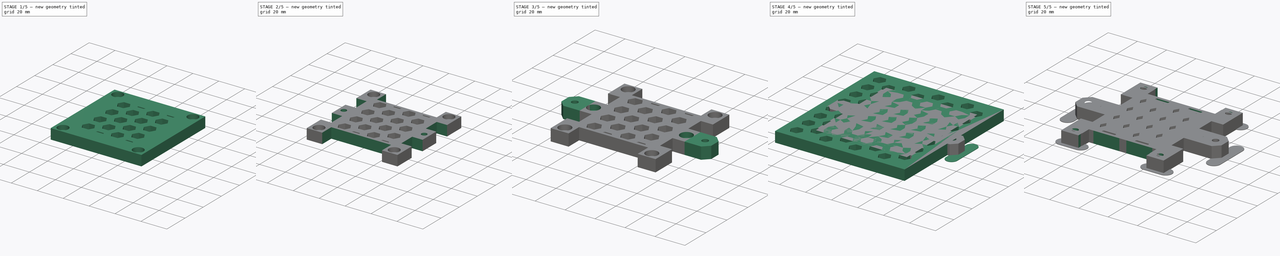
[diagram: build sequence overview — one tinted view per stage of 5, left to right]
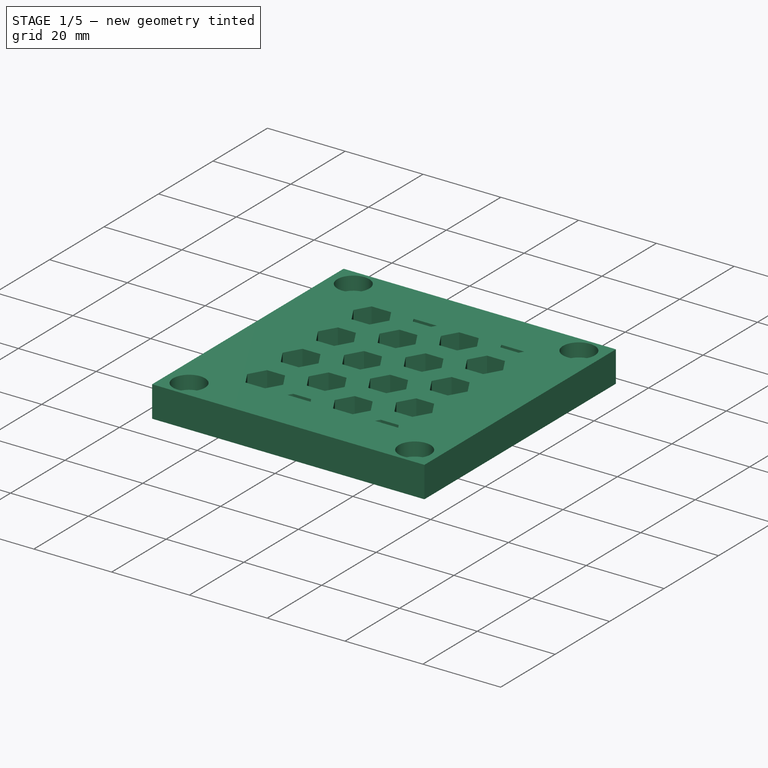
[diagram: stage 1 of 5 — iso view after this stage's code; geometry added in this stage tinted green]
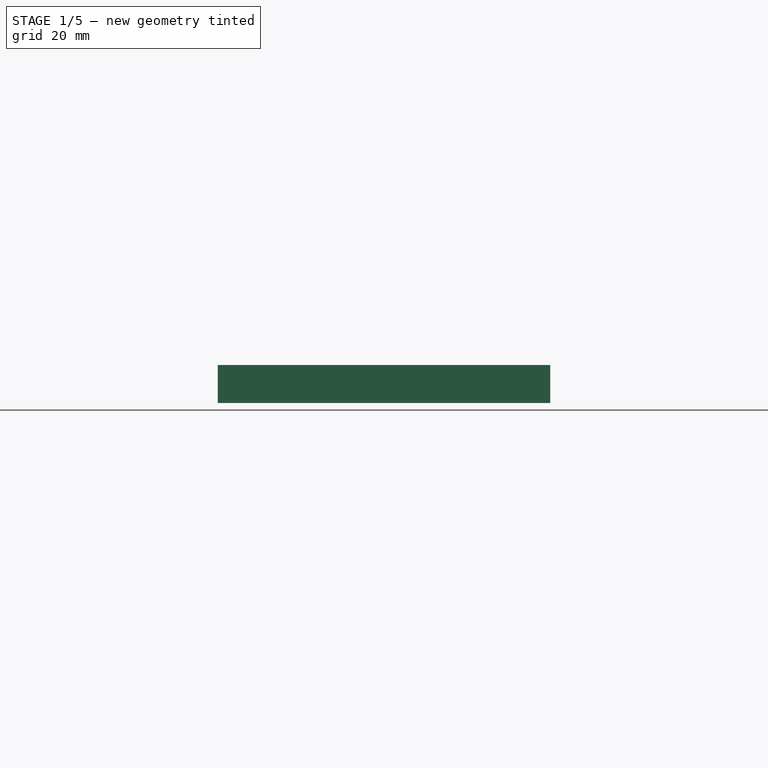
[diagram: stage 1 of 5 — front view after this stage's code; geometry added in this stage tinted green]
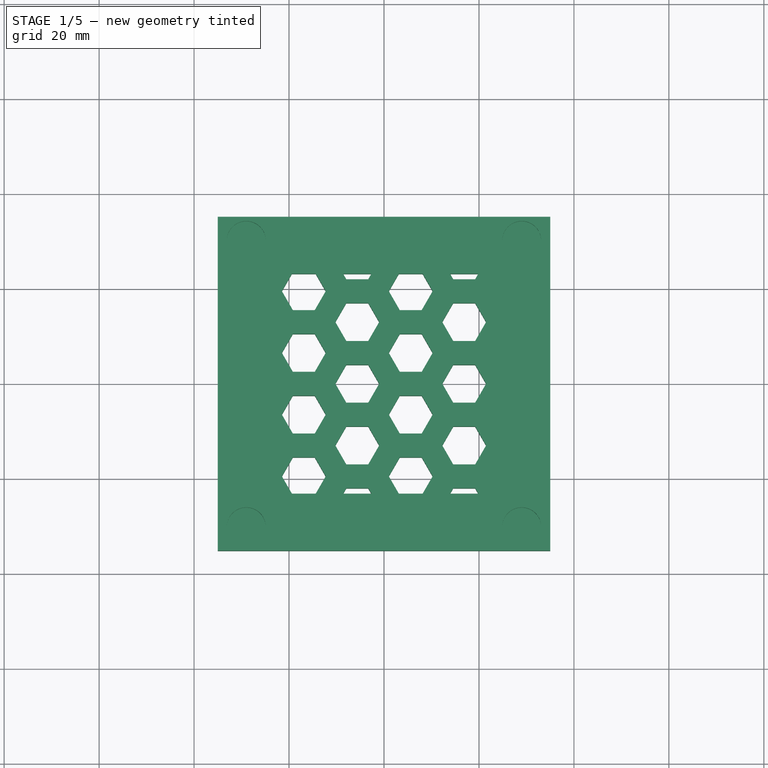
[diagram: stage 1 of 5 — top view after this stage's code; geometry added in this stage tinted green]
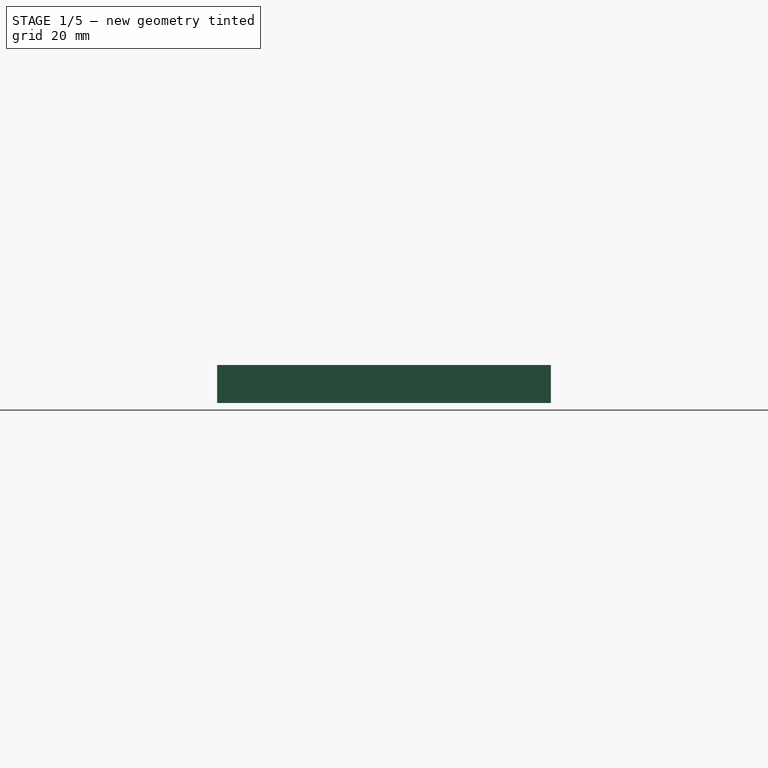
[diagram: stage 1 of 5 — right view after this stage's code; geometry added in this stage tinted green]
FCSTD DOCUMENT  (FreeCAD 0.15R4671 (Git))
Label: Halter Fraesspindel Rueckwand
License: All rights reserved
LicenseURL: http://de.wikipedia.org/wiki/Alle_Rechte_vorbehalten
objects: Sketcher::SketchObject×18, PartDesign::Pocket×11, Drawing::FeatureView×10, PartDesign::Pad×7, Part::Feature×2, Part::Extrusion×2, Part::MultiCommon×2, Part::MultiFuse×1, Drawing::FeatureViewPart×1, Drawing::FeaturePage×1
note: 61 computed .brp shape members not serialized (recipe doc carries the construction recipe); baked Part::Feature solids carry a one-line shape summary decoded from their .brp

FEATURE [Sketcher::SketchObject] Sketch005
  sketch-geometry (8):
    g0: LineSegment StartX=-35 StartY=35.15 StartZ=0 EndX=35 EndY=35.15 EndZ=0
    g1: LineSegment StartX=35 StartY=35.15 StartZ=0 EndX=35 EndY=-35.15 EndZ=0
    g2: LineSegment StartX=35 StartY=-35.15 StartZ=0 EndX=-35 EndY=-35.15 EndZ=0
    g3: LineSegment StartX=-35 StartY=-35.15 StartZ=0 EndX=-35 EndY=35.15 EndZ=0
    g4: LineSegment StartX=-23 StartY=23.15 StartZ=0 EndX=23 EndY=23.15 EndZ=0
    g5: LineSegment StartX=23 StartY=23.15 StartZ=0 EndX=23 EndY=-23.15 EndZ=0
    g6: LineSegment StartX=23 StartY=-23.15 StartZ=0 EndX=-23 EndY=-23.15 EndZ=0
    g7: LineSegment StartX=-23 StartY=-23.15 StartZ=0 EndX=-23 EndY=23.15 EndZ=0
  constraints (24):
    c: Coincident(g0,g1)
    c: Coincident(g1,g2)
    c: Coincident(g2,g3)
    c: Coincident(g3,g0)
    c: Horizontal(g0)
    c: Horizontal(g2)
    c: Vertical(g1)
    c: Vertical(g3)
    c: Symmetric(g1,g2,g-2)
    c: Symmetric(g0,g1,g-1)
    c: DistanceX(g2) = -70
    c: DistanceY(g1) = -70.3
    c: Coincident(g4,g5)
    c: Coincident(g5,g6)
    c: Coincident(g6,g7)
    c: Coincident(g7,g4)
    c: Horizontal(g4)
    c: Horizontal(g6)
    c: Vertical(g5)
    c: Vertical(g7)
    c: Symmetric(g5,g6,g-2)
    c: Symmetric(g4,g5,g-1)
    c: DistanceX(g5,g1) = 12
    c: DistanceY(g1,g5) = 12
FEATURE [PartDesign::Pad] Pad002
  Length = 8
  Length2 = 100
  Sketch = -> Sketch005
  Type = 0
FEATURE [Sketcher::SketchObject] Sketch006
  ExternalGeometry = -> [Pad002]
  Placement = pos=(0,0,8) rot=(0,0,1;0rad)
  Support = -> Pad002 [Face10]
  sketch-geometry (8):
    g0: LineSegment [constr] StartX=-29 StartY=30.15 StartZ=0 EndX=29 EndY=30.15 EndZ=0
    g1: LineSegment [constr] StartX=29 StartY=30.15 StartZ=0 EndX=29 EndY=-30.15 EndZ=0
    g2: LineSegment [constr] StartX=29 StartY=-30.15 StartZ=0 EndX=-29 EndY=-30.15 EndZ=0
    g3: LineSegment [constr] StartX=-29 StartY=-30.15 StartZ=0 EndX=-29 EndY=30.15 EndZ=0
    g4: Circle CenterX=-29 CenterY=30.15 CenterZ=0 NormalX=0 NormalY=0 NormalZ=1 Radius=4.1
    g5: Circle CenterX=29 CenterY=30.15 CenterZ=0 NormalX=0 NormalY=0 NormalZ=1 Radius=4.1
    g6: Circle CenterX=-29 CenterY=-30.15 CenterZ=0 NormalX=0 NormalY=0 NormalZ=1 Radius=4.1
    g7: Circle CenterX=29 CenterY=-30.15 CenterZ=0 NormalX=0 NormalY=0 NormalZ=1 Radius=4.1
  constraints (20):
    c: Coincident(g0,g1)
    c: Coincident(g1,g2)
    c: Coincident(g2,g3)
    c: Coincident(g3,g0)
    c: Horizontal(g0)
    c: Horizontal(g2)
    c: Vertical(g1)
    c: Vertical(g3)
    c: DistanceX(g0,g-3) = -6
    c: DistanceY(g-3,g0) = -5
    c: Equal(g4,g6)
    c: Equal(g6,g7)
    c: Equal(g7,g5)
    c: Radius(g4) = 4.1
    c: Coincident(g4,g0)
    c: Coincident(g0,g5)
    c: Coincident(g7,g1)
    c: Coincident(g6,g2)
    c: Symmetric(g1,g2,g-2)
    c: Symmetric(g0,g1,g-1)
FEATURE [PartDesign::Pocket] Pocket003
  Length = 3.5
  Sketch = -> Sketch006
  Type = 0
FEATURE [Sketcher::SketchObject] Sketch016
  sketch-geometry (4):
    g0: LineSegment StartX=-23 StartY=23.15 StartZ=0 EndX=23 EndY=23.15 EndZ=0
    g1: LineSegment StartX=23 StartY=23.15 StartZ=0 EndX=23 EndY=-23.15 EndZ=0
    g2: LineSegment StartX=23 StartY=-23.15 StartZ=0 EndX=-23 EndY=-23.15 EndZ=0
    g3: LineSegment StartX=-23 StartY=-23.15 StartZ=0 EndX=-23 EndY=23.15 EndZ=0
  constraints (12):
    c: Coincident(g0,g1)
    c: Coincident(g1,g2)
    c: Coincident(g2,g3)
    c: Coincident(g3,g0)
    c: Horizontal(g0)
    c: Horizontal(g2)
    c: Vertical(g1)
    c: Vertical(g3)
    c: Symmetric(g1,g2,g-2)
    c: Symmetric(g0,g1,g-1)
    c: DistanceX(g0) = 46
    c: DistanceY(g1) = -46.3
FEATURE [PartDesign::Pad] Pad005
  Length = 8
  Length2 = 100
  Sketch = -> Sketch016
  Type = 0
FEATURE [Part::Feature] Honeycomb001
  shape: bbox 99.59 x 109 x 2e-07 mm, 1 faces, 0 solids (baked)
FEATURE [Part::Extrusion] Extrude001
  Base = -> Honeycomb001
  Dir = (0,0,8)
  Solid = true
FEATURE [Part::MultiCommon] Common001
  Shapes = -> [Extrude001,Pad005]
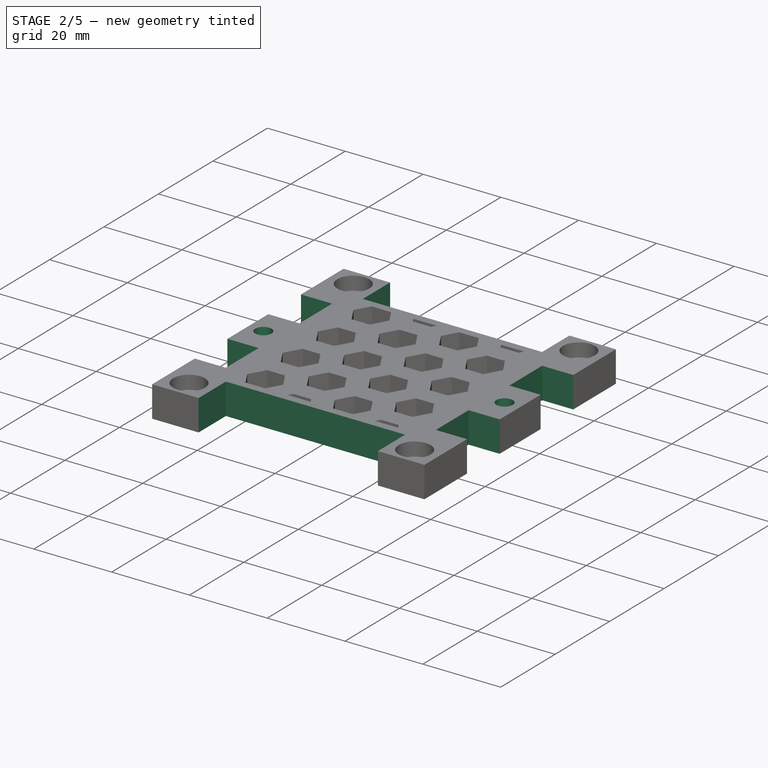
[diagram: stage 2 of 5 — iso view after this stage's code; geometry added in this stage tinted green]
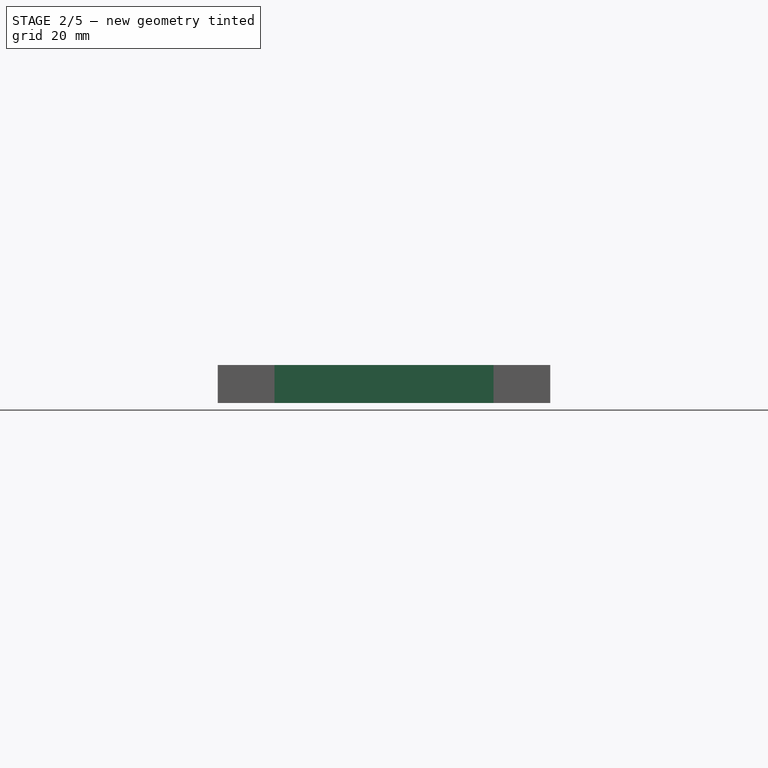
[diagram: stage 2 of 5 — front view after this stage's code; geometry added in this stage tinted green]
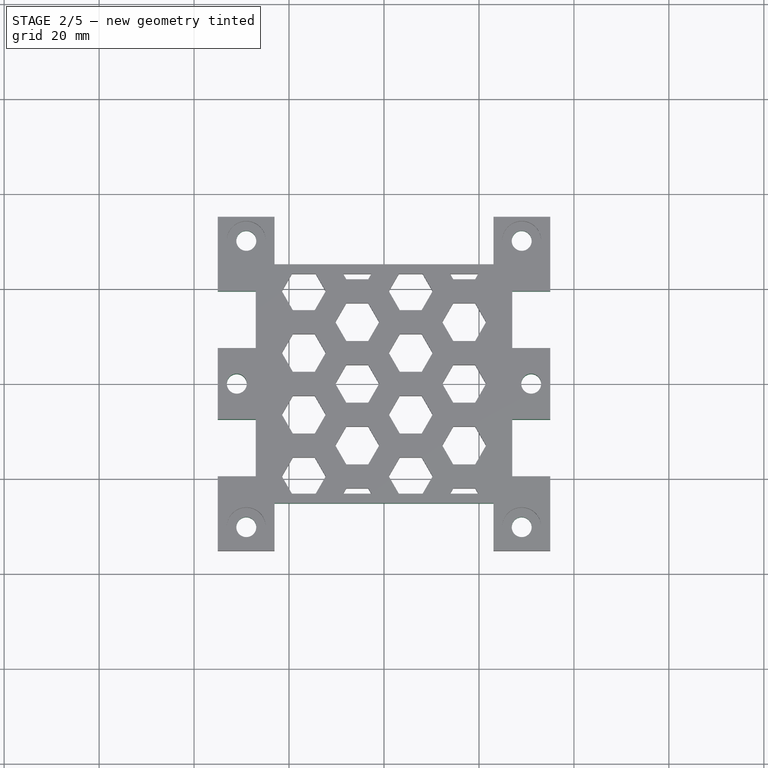
[diagram: stage 2 of 5 — top view after this stage's code; geometry added in this stage tinted green]
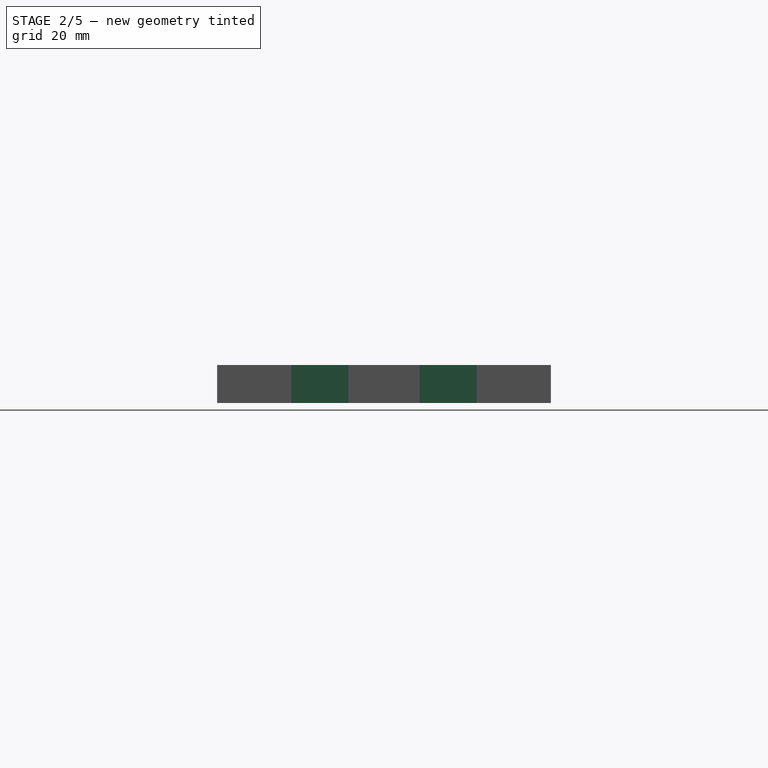
[diagram: stage 2 of 5 — right view after this stage's code; geometry added in this stage tinted green]
FEATURE [Sketcher::SketchObject] Sketch007
  ExternalGeometry = -> [Pocket003]
  Placement = pos=(0,0,4.5) rot=(0,0,1;0rad)
  Support = -> Pocket003 [Face18]
  sketch-geometry (8):
    g0: LineSegment [constr] StartX=-29 StartY=30.15 StartZ=0 EndX=29 EndY=30.15 EndZ=0
    g1: LineSegment [constr] StartX=29 StartY=30.15 StartZ=0 EndX=29 EndY=-30.15 EndZ=0
    g2: LineSegment [constr] StartX=29 StartY=-30.15 StartZ=0 EndX=-29 EndY=-30.15 EndZ=0
    g3: LineSegment [constr] StartX=-29 StartY=-30.15 StartZ=0 EndX=-29 EndY=30.15 EndZ=0
    g4: Circle CenterX=-29 CenterY=30.15 CenterZ=0 NormalX=0 NormalY=0 NormalZ=1 Radius=2.1
    g5: Circle CenterX=-29 CenterY=-30.15 CenterZ=0 NormalX=0 NormalY=0 NormalZ=1 Radius=2.1
    g6: Circle CenterX=29 CenterY=30.15 CenterZ=0 NormalX=0 NormalY=0 NormalZ=1 Radius=2.1
    g7: Circle CenterX=29 CenterY=-30.15 CenterZ=0 NormalX=0 NormalY=0 NormalZ=1 Radius=2.1
  constraints (19):
    c: Coincident(g0,g1)
    c: Coincident(g1,g2)
    c: Coincident(g2,g3)
    c: Coincident(g3,g0)
    c: Horizontal(g0)
    c: Horizontal(g2)
    c: Vertical(g1)
    c: Vertical(g3)
    c: Coincident(g0,g-3)
    c: Symmetric(g1,g2,g-2)
    c: Symmetric(g0,g1,g-1)
    c: Coincident(g4,g0)
    c: Coincident(g5,g2)
    c: Coincident(g6,g0)
    c: Coincident(g7,g1)
    c: Equal(g4,g5)
    c: Equal(g5,g7)
    c: Equal(g7,g6)
    c: Radius(g7) = 2.1
FEATURE [PartDesign::Pocket] Pocket004
  Length = 5
  Sketch = -> Sketch007
  Type = 1
FEATURE [Sketcher::SketchObject] Sketch008
  ExternalGeometry = -> [Pocket004]
  Placement = pos=(0,0,8) rot=(0,0,1;0rad)
  Support = -> Pocket004 [Face5]
  sketch-geometry (16):
    g0: LineSegment StartX=-35 StartY=19.5 StartZ=0 EndX=-27 EndY=19.5 EndZ=0
    g1: LineSegment StartX=-27 StartY=19.5 StartZ=0 EndX=-27 EndY=7.5 EndZ=0
    g2: LineSegment StartX=-27 StartY=7.5 StartZ=0 EndX=-35 EndY=7.5 EndZ=0
    g3: LineSegment StartX=-35 StartY=7.5 StartZ=0 EndX=-35 EndY=19.5 EndZ=0
    g4: LineSegment StartX=-35 StartY=-19.5 StartZ=0 EndX=-27 EndY=-19.5 EndZ=0
    g5: LineSegment StartX=-27 StartY=-19.5 StartZ=0 EndX=-27 EndY=-7.5 EndZ=0
    g6: LineSegment StartX=-27 StartY=-7.5 StartZ=0 EndX=-35 EndY=-7.5 EndZ=0
    g7: LineSegment StartX=-35 StartY=-7.5 StartZ=0 EndX=-35 EndY=-19.5 EndZ=0
    g8: LineSegment StartX=35 StartY=-19.5 StartZ=0 EndX=27 EndY=-19.5 EndZ=0
    g9: LineSegment StartX=27 StartY=-19.5 StartZ=0 EndX=27 EndY=-7.5 EndZ=0
    g10: LineSegment StartX=27 StartY=-7.5 StartZ=0 EndX=35 EndY=-7.5 EndZ=0
    g11: LineSegment StartX=35 StartY=-7.5 StartZ=0 EndX=35 EndY=-19.5 EndZ=0
    g12: LineSegment StartX=35 StartY=7.5 StartZ=0 EndX=27 EndY=7.5 EndZ=0
    g13: LineSegment StartX=27 StartY=7.5 StartZ=0 EndX=27 EndY=19.5 EndZ=0
    g14: LineSegment StartX=27 StartY=19.5 StartZ=0 EndX=35 EndY=19.5 EndZ=0
    g15: LineSegment StartX=35 StartY=19.5 StartZ=0 EndX=35 EndY=7.5 EndZ=0
  constraints (48):
    c: Coincident(g0,g1)
    c: Coincident(g1,g2)
    c: Coincident(g2,g3)
    c: Coincident(g3,g0)
    c: Horizontal(g0)
    c: Horizontal(g2)
    c: Vertical(g1)
    c: Vertical(g3)
    c: PointOnObject(g0,g-3)
    c: Coincident(g4,g5)
    c: Coincident(g5,g6)
    c: Coincident(g6,g7)
    c: Coincident(g7,g4)
    c: Horizontal(g4)
    c: Horizontal(g6)
    c: Vertical(g5)
    c: Vertical(g7)
    c: PointOnObject(g4,g-3)
    c: Coincident(g8,g9)
    c: Coincident(g9,g10)
    c: Coincident(g10,g11)
    c: Coincident(g11,g8)
    c: Horizontal(g8)
    c: Horizontal(g10)
    c: Vertical(g9)
    c: Vertical(g11)
    c: PointOnObject(g8,g-4)
    c: Coincident(g12,g13)
    c: Coincident(g13,g14)
    c: Coincident(g14,g15)
    c: Coincident(g15,g12)
    c: Horizontal(g12)
    c: Horizontal(g14)
    c: Vertical(g13)
    c: Vertical(g15)
    c: PointOnObject(g12,g-4)
    c: PointOnObject(g12,g2)
    c: PointOnObject(g9,g6)
    c: Symmetric(g1,g5,g-1)
    c: DistanceY(g-1,g1) = 7.5
    c: DistanceY(g1) = -12
    c: DistanceX(g0) = 8
    c: Equal(g6,g2)
    c: Equal(g2,g12)
    c: Equal(g12,g10)
    c: Equal(g1,g5)
    c: Equal(g5,g9)
    c: Equal(g9,g13)
FEATURE [PartDesign::Pocket] Pocket005
  Length = 5
  Sketch = -> Sketch008
  Type = 1
FEATURE [Sketcher::SketchObject] Sketch009
  ExternalGeometry = -> [Pocket005]
  Placement = pos=(0,0,8) rot=(0,0,1;0rad)
  Support = -> Pocket005 [Face5]
  sketch-geometry (8):
    g0: LineSegment StartX=-23.05 StartY=35.15 StartZ=0 EndX=23.05 EndY=35.15 EndZ=0
    g1: LineSegment StartX=23.05 StartY=35.15 StartZ=0 EndX=23.05 EndY=25.15 EndZ=0
    g2: LineSegment StartX=23.05 StartY=25.15 StartZ=0 EndX=-23.05 EndY=25.15 EndZ=0
    g3: LineSegment StartX=-23.05 StartY=25.15 StartZ=0 EndX=-23.05 EndY=35.15 EndZ=0
    g4: LineSegment StartX=-23.05 StartY=-35.15 StartZ=0 EndX=23.05 EndY=-35.15 EndZ=0
    g5: LineSegment StartX=23.05 StartY=-35.15 StartZ=0 EndX=23.05 EndY=-25.15 EndZ=0
    g6: LineSegment StartX=23.05 StartY=-25.15 StartZ=0 EndX=-23.05 EndY=-25.15 EndZ=0
    g7: LineSegment StartX=-23.05 StartY=-25.15 StartZ=0 EndX=-23.05 EndY=-35.15 EndZ=0
  constraints (24):
    c: Coincident(g0,g1)
    c: Coincident(g1,g2)
    c: Coincident(g2,g3)
    c: Coincident(g3,g0)
    c: Horizontal(g0)
    c: Horizontal(g2)
    c: Vertical(g1)
    c: Vertical(g3)
    c: PointOnObject(g0,g-3)
    c: DistanceX(g2) = -46.1
    c: Coincident(g4,g5)
    c: Coincident(g5,g6)
    c: Coincident(g6,g7)
    c: Coincident(g7,g4)
    c: Horizontal(g4)
    c: Horizontal(g6)
    c: Vertical(g5)
    c: Vertical(g7)
    c: PointOnObject(g4,g-4)
    c: Equal(g6,g2)
    c: Symmetric(g6,g5,g-2)
    c: PointOnObject(g2,g7)
    c: Equal(g1,g5)
    c: DistanceY(g1) = -10
FEATURE [PartDesign::Pocket] Pocket006
  Length = 5
  Sketch = -> Sketch009
  Type = 1
FEATURE [Sketcher::SketchObject] Sketch010
  ExternalGeometry = -> [Pocket006]
  Placement = pos=(0,0,8) rot=(0,0,1;0rad)
  Support = -> Pocket006 [Face4]
  sketch-geometry (3):
    g0: LineSegment [constr] StartX=27 StartY=7.5 StartZ=0 EndX=35 EndY=-7.5 EndZ=0
    g1: Circle CenterX=31 CenterY=0 CenterZ=0 NormalX=0 NormalY=0 NormalZ=1 Radius=2.1
    g2: Circle CenterX=-31 CenterY=0 CenterZ=0 NormalX=0 NormalY=0 NormalZ=1 Radius=2.1
  constraints (7):
    c: Coincident(g0,g-3)
    c: Coincident(g0,g-4)
    c: PointOnObject(g1,g0)
    c: Symmetric(g2,g1,g-2)
    c: Equal(g2,g1)
    c: Radius(g1) = 2.1
    c: PointOnObject(g1,g-1)
FEATURE [PartDesign::Pocket] Pocket007
  Length = 5
  Sketch = -> Sketch010
  Type = 1
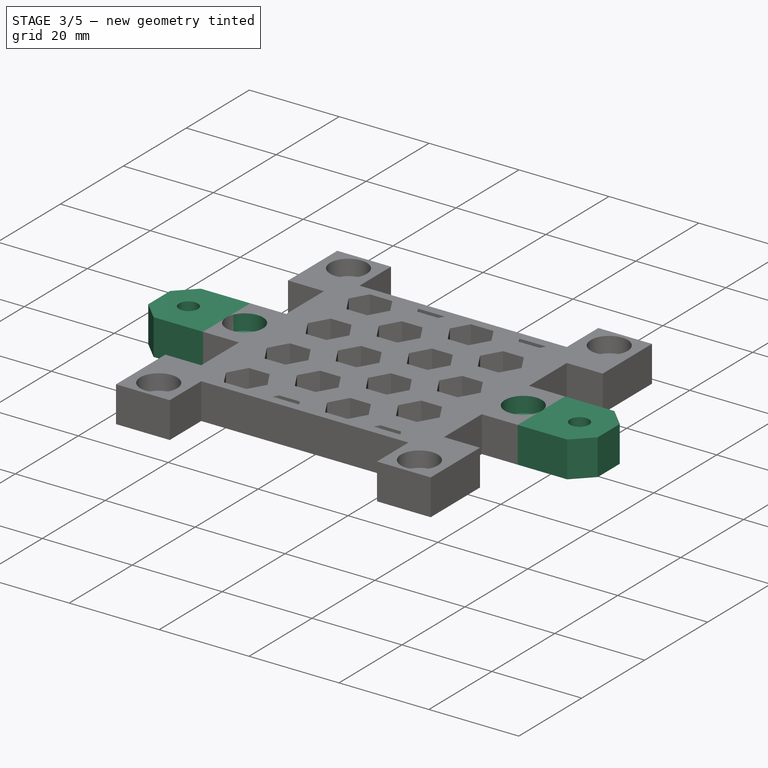
[diagram: stage 3 of 5 — iso view after this stage's code; geometry added in this stage tinted green]
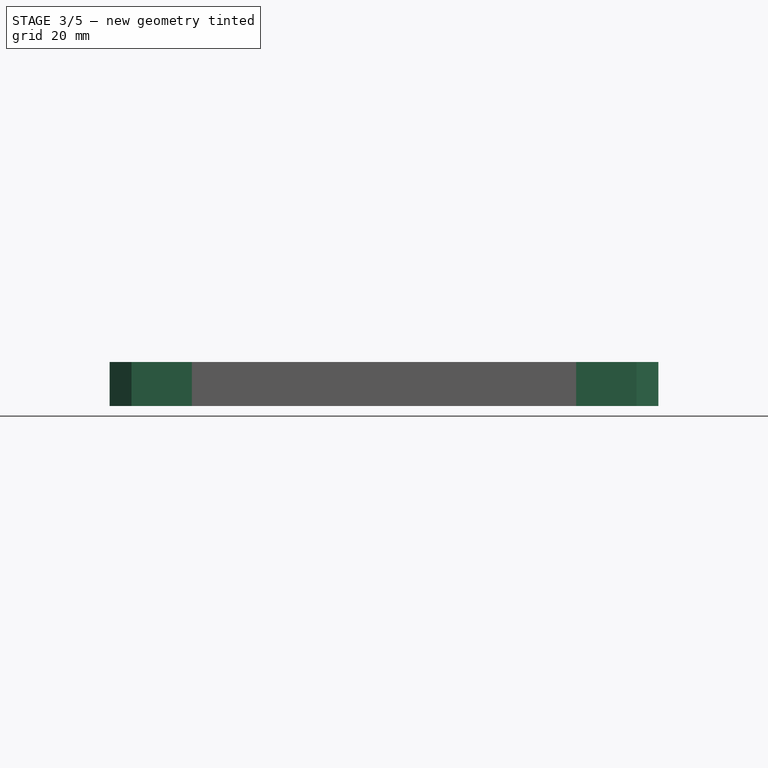
[diagram: stage 3 of 5 — front view after this stage's code; geometry added in this stage tinted green]
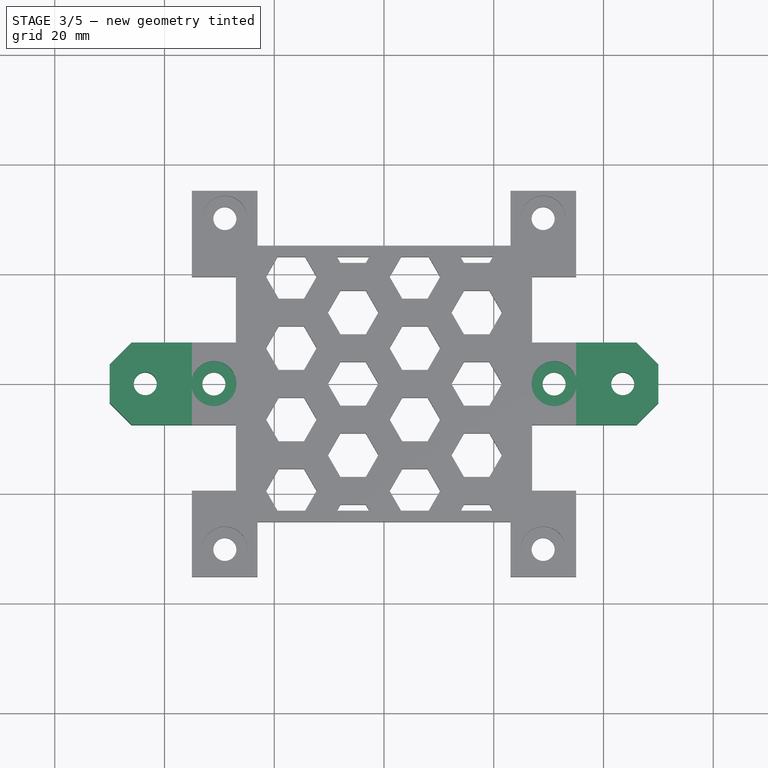
[diagram: stage 3 of 5 — top view after this stage's code; geometry added in this stage tinted green]
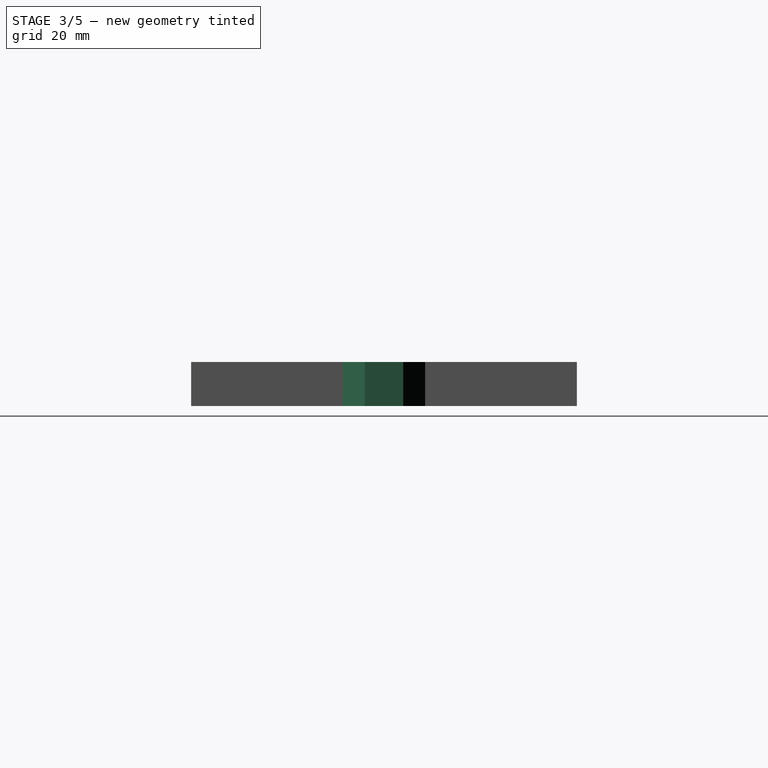
[diagram: stage 3 of 5 — right view after this stage's code; geometry added in this stage tinted green]
FEATURE [Sketcher::SketchObject] Sketch012
  ExternalGeometry = -> [Pocket007]
  Placement = pos=(-35,0,0) rot=(0.57735,-0.57735,-0.57735;2.0944rad)
  Support = -> Pocket007 [Face12]
  sketch-geometry (4):
    g0: LineSegment StartX=-7.5 StartY=8 StartZ=0 EndX=7.5 EndY=8 EndZ=0
    g1: LineSegment StartX=7.5 StartY=8 StartZ=0 EndX=7.5 EndY=0 EndZ=0
    g2: LineSegment StartX=7.5 StartY=0 StartZ=0 EndX=-7.5 EndY=0 EndZ=0
    g3: LineSegment StartX=-7.5 StartY=0 StartZ=0 EndX=-7.5 EndY=8 EndZ=0
  constraints (10):
    c: Coincident(g0,g1)
    c: Coincident(g1,g2)
    c: Coincident(g2,g3)
    c: Coincident(g3,g0)
    c: Horizontal(g0)
    c: Horizontal(g2)
    c: Vertical(g1)
    c: Vertical(g3)
    c: Coincident(g0,g-4)
    c: Coincident(g1,g-3)
FEATURE [PartDesign::Pad] Pad003
  Length = 15
  Length2 = 100
  Sketch = -> Sketch012
  Type = 0
FEATURE [Sketcher::SketchObject] Sketch013
  ExternalGeometry = -> [Pad003]
  Placement = pos=(35,0,0) rot=(0.57735,0.57735,0.57735;2.0944rad)
  Support = -> Pad003 [Face21]
  sketch-geometry (4):
    g0: LineSegment StartX=-7.5 StartY=8 StartZ=0 EndX=7.5 EndY=8 EndZ=0
    g1: LineSegment StartX=7.5 StartY=8 StartZ=0 EndX=7.5 EndY=0 EndZ=0
    g2: LineSegment StartX=7.5 StartY=0 StartZ=0 EndX=-7.5 EndY=0 EndZ=0
    g3: LineSegment StartX=-7.5 StartY=0 StartZ=0 EndX=-7.5 EndY=8 EndZ=0
  constraints (11):
    c: Coincident(g0,g1)
    c: Coincident(g1,g2)
    c: Coincident(g2,g3)
    c: Coincident(g3,g0)
    c: Horizontal(g0)
    c: Horizontal(g2)
    c: Vertical(g1)
    c: Vertical(g3)
    c: Coincident(g0,g-3)
    c: PointOnObject(g1,g-1)
    c: Coincident(g-3,g0)
FEATURE [PartDesign::Pad] Pad004
  Length = 15
  Length2 = 100
  Sketch = -> Sketch013
  Type = 0
FEATURE [Sketcher::SketchObject] Sketch011
  ExternalGeometry = -> [Pocket007]
  Placement = pos=(0,0,8) rot=(0,0,1;0rad)
  Support = -> Pad004 [Face4]
  sketch-geometry (2):
    g0: Circle CenterX=-31 CenterY=0 CenterZ=0 NormalX=0 NormalY=0 NormalZ=1 Radius=4.1
    g1: Circle CenterX=31 CenterY=0 CenterZ=0 NormalX=0 NormalY=0 NormalZ=1 Radius=4.1
  constraints (4):
    c: Equal(g0,g1)
    c: Symmetric(g1,g0,g-2)
    c: Coincident(g1,g-3)
    c: Radius(g1) = 4.1
FEATURE [PartDesign::Pocket] Pocket008
  Length = 3.5
  Sketch = -> Sketch011
  Type = 0
FEATURE [Sketcher::SketchObject] Sketch014
  ExternalGeometry = -> [Pocket008]
  Placement = pos=(0,0,8) rot=(0,0,1;0rad)
  Support = -> Pocket008 [Face43]
  sketch-geometry (13):
    g0: LineSegment StartX=-46 StartY=7.5 StartZ=0 EndX=-50 EndY=3.5 EndZ=0
    g1: LineSegment StartX=-50 StartY=3.5 StartZ=0 EndX=-50 EndY=7.5 EndZ=0
    g2: LineSegment StartX=-50 StartY=7.5 StartZ=0 EndX=-46 EndY=7.5 EndZ=0
    g3: LineSegment StartX=50 StartY=7.5 StartZ=0 EndX=46 EndY=7.5 EndZ=0
    g4: LineSegment StartX=46 StartY=7.5 StartZ=0 EndX=50 EndY=3.5 EndZ=0
    g5: LineSegment StartX=50 StartY=3.5 StartZ=0 EndX=50 EndY=7.5 EndZ=0
    g6: LineSegment StartX=50 StartY=-3.5 StartZ=0 EndX=50 EndY=-7.5 EndZ=0
    g7: LineSegment StartX=50 StartY=-7.5 StartZ=0 EndX=46 EndY=-7.5 EndZ=0
    g8: LineSegment StartX=46 StartY=-7.5 StartZ=0 EndX=50 EndY=-3.5 EndZ=0
    g9: LineSegment StartX=-50 StartY=-3.5 StartZ=0 EndX=-50 EndY=-7.5 EndZ=0
    g10: LineSegment StartX=-50 StartY=-7.5 StartZ=0 EndX=-46 EndY=-7.5 EndZ=0
    g11: LineSegment StartX=-46 StartY=-7.5 StartZ=0 EndX=-50 EndY=-3.5 EndZ=0
    g12: LineSegment [constr] StartX=50 StartY=3.5 StartZ=0 EndX=50 EndY=-3.5 EndZ=0
  constraints (34):
    c: Coincident(g0,g1)
    c: Vertical(g1)
    c: Coincident(g1,g2)
    c: Coincident(g2,g0)
    c: Horizontal(g2)
    c: Coincident(g3,g4)
    c: Coincident(g4,g5)
    c: Coincident(g5,g3)
    c: Vertical(g6)
    c: Coincident(g6,g7)
    c: Horizontal(g7)
    c: Coincident(g7,g8)
    c: Coincident(g8,g6)
    c: Vertical(g9)
    c: Coincident(g9,g10)
    c: Horizontal(g10)
    c: Coincident(g10,g11)
    c: Coincident(g11,g9)
    c: Horizontal(g3)
    c: Vertical(g5)
    c: Equal(g3,g2)
    c: Equal(g2,g1)
    c: Equal(g1,g9)
    c: Equal(g9,g10)
    c: Equal(g10,g7)
    c: Equal(g7,g6)
    c: Equal(g6,g5)
    c: Coincident(g1,g-4)
    c: Coincident(g3,g-3)
    c: Coincident(g6,g-3)
    c: Coincident(g9,g-4)
    c: Coincident(g4,g12)
    c: Coincident(g6,g12)
    c: DistanceY(g6,g4) = 7
FEATURE [PartDesign::Pocket] Pocket009
  Length = 5
  Sketch = -> Sketch014
  Type = 1
FEATURE [Sketcher::SketchObject] Sketch015
  ExternalGeometry = -> [Pocket009]
  Placement = pos=(0,0,8) rot=(0,0,1;0rad)
  Support = -> Pocket009 [Face43]
  sketch-geometry (2):
    g0: Circle CenterX=-43.5 CenterY=0 CenterZ=0 NormalX=0 NormalY=0 NormalZ=1 Radius=2.1
    g1: Circle CenterX=43.5 CenterY=0 CenterZ=0 NormalX=0 NormalY=0 NormalZ=1 Radius=2.1
  constraints (5):
    c: PointOnObject(g1,g-1)
    c: Symmetric(g1,g0,g-2)
    c: Radius(g0) = 2.1
    c: Equal(g0,g1)
    c: DistanceX(g0,g-3) = 8.5
FEATURE [PartDesign::Pocket] Pocket010
  Length = 5
  Sketch = -> Sketch015
  Type = 1
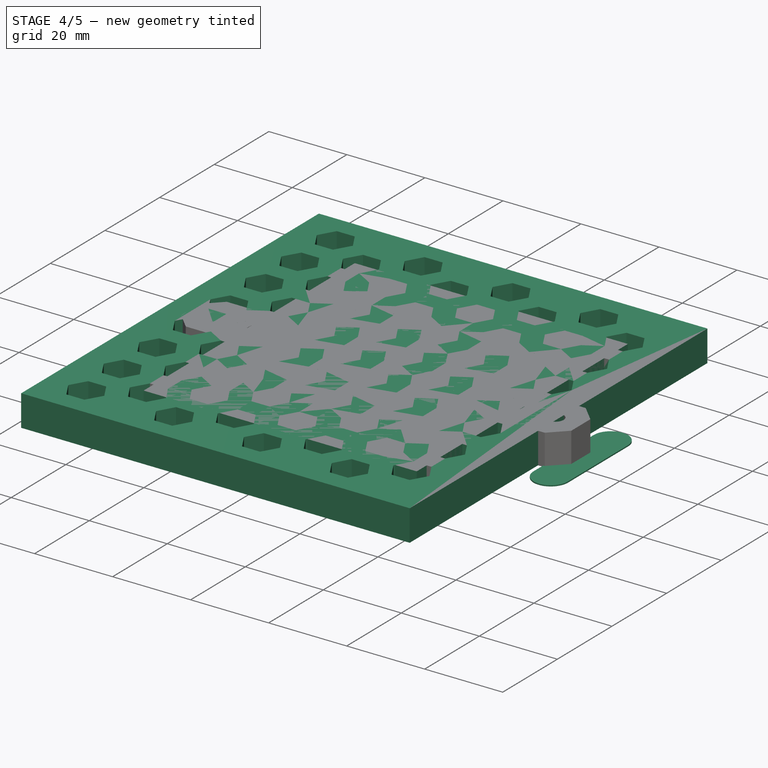
[diagram: stage 4 of 5 — iso view after this stage's code; geometry added in this stage tinted green]
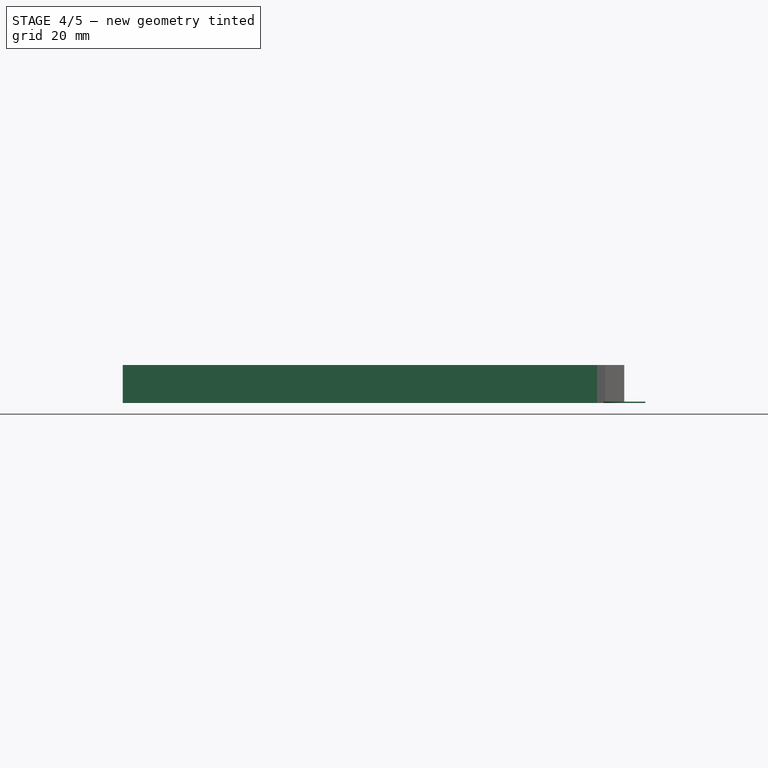
[diagram: stage 4 of 5 — front view after this stage's code; geometry added in this stage tinted green]
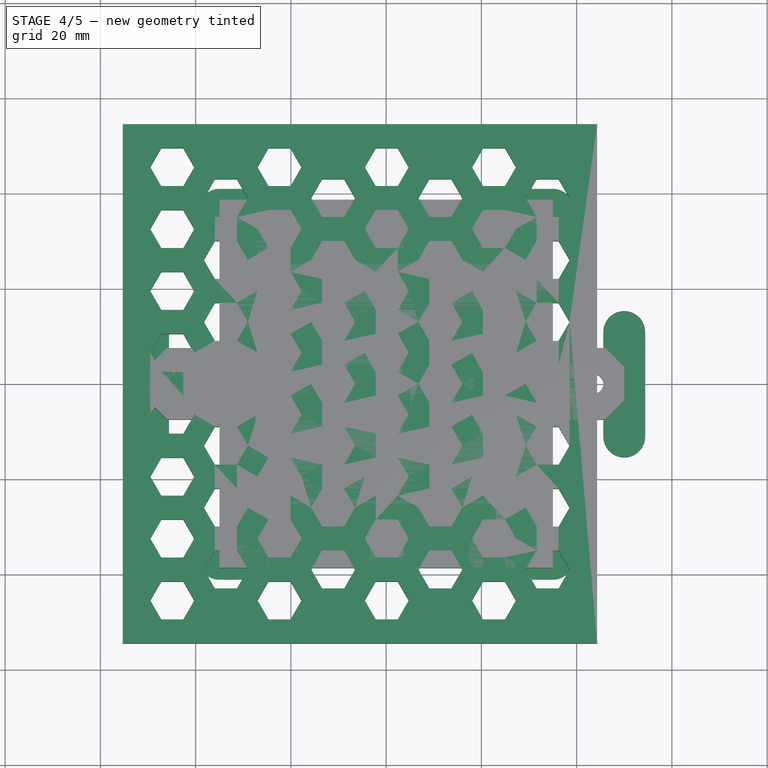
[diagram: stage 4 of 5 — top view after this stage's code; geometry added in this stage tinted green]
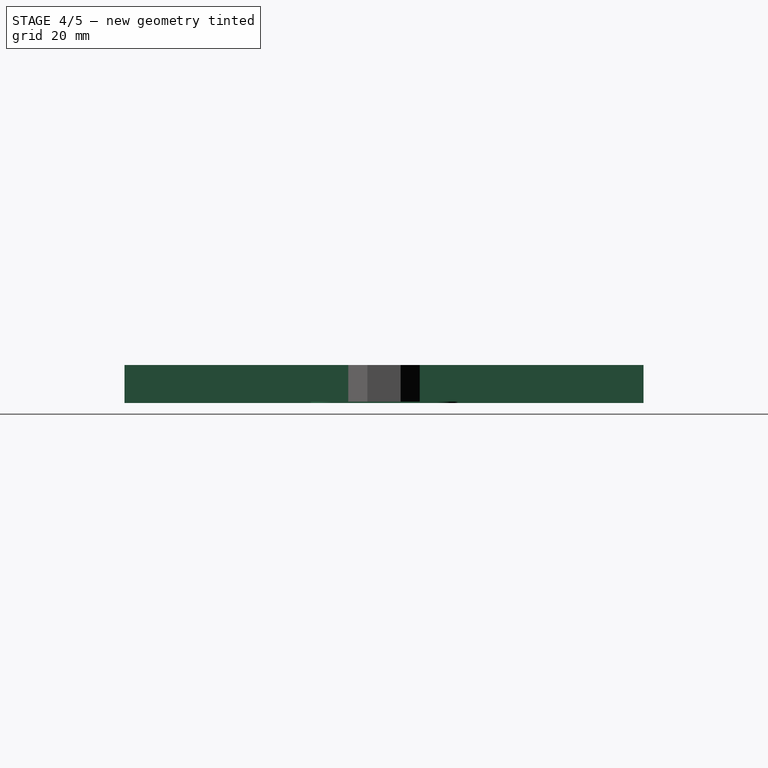
[diagram: stage 4 of 5 — right view after this stage's code; geometry added in this stage tinted green]
FEATURE [Sketcher::SketchObject] Sketch
  sketch-geometry (4):
    g0: LineSegment StartX=-35 StartY=38.65 StartZ=0 EndX=35 EndY=38.65 EndZ=0
    g1: LineSegment StartX=35 StartY=38.65 StartZ=0 EndX=35 EndY=-38.65 EndZ=0
    g2: LineSegment StartX=35 StartY=-38.65 StartZ=0 EndX=-35 EndY=-38.65 EndZ=0
    g3: LineSegment StartX=-35 StartY=-38.65 StartZ=0 EndX=-35 EndY=38.65 EndZ=0
  constraints (12):
    c: Coincident(g0,g1)
    c: Coincident(g1,g2)
    c: Coincident(g2,g3)
    c: Coincident(g3,g0)
    c: Horizontal(g0)
    c: Horizontal(g2)
    c: Vertical(g1)
    c: Vertical(g3)
    c: Symmetric(g1,g2,g-2)
    c: Symmetric(g0,g1,g-1)
    c: DistanceY(g1) = -77.3
    c: DistanceX(g2) = -70
FEATURE [PartDesign::Pad] Pad
  Length = 8
  Length2 = 100
  Sketch = -> Sketch
  Type = 0
FEATURE [Part::Feature] Honeycomb
  Placement = pos=(-5.5,0,0) rot=(0,0,1;0rad)
  shape: bbox 99.59 x 109 x 2e-07 mm, 1 faces, 0 solids (baked)
FEATURE [Part::Extrusion] Extrude
  Base = -> Honeycomb
  Dir = (0,0,8)
  Solid = false
FEATURE [Part::MultiFuse] Fusion  label="Halter Fraesspindel Rueckwand"
  Shapes = -> [Common001,Pocket010]
FEATURE [Sketcher::SketchObject] Sketch017
  ExternalGeometry = -> [Fusion]
  Placement = pos=(0,0,0) rot=(1,0,0;3.14159rad)
  Support = -> Fusion [Face2]
  sketch-geometry (24):
    g0: ArcOfCircle CenterX=50 CenterY=11 CenterZ=0 NormalX=0 NormalY=0 NormalZ=1 Radius=4.4 StartAngle=0 EndAngle=3.14159
    g1: ArcOfCircle CenterX=50 CenterY=-11 CenterZ=0 NormalX=0 NormalY=0 NormalZ=1 Radius=4.4 StartAngle=3.14159 EndAngle=6.28319
    g2: LineSegment StartX=45.6 StartY=11 StartZ=0 EndX=45.6 EndY=-11 EndZ=0
    g3: LineSegment StartX=54.4 StartY=11 StartZ=0 EndX=54.4 EndY=-11 EndZ=0
    g4: ArcOfCircle CenterX=23.05 CenterY=36.65 CenterZ=0 NormalX=0 NormalY=0 NormalZ=1 Radius=4.4 StartAngle=1.5708 EndAngle=4.71239
    g5: ArcOfCircle CenterX=35 CenterY=36.65 CenterZ=0 NormalX=0 NormalY=0 NormalZ=1 Radius=4.4 StartAngle=4.71239 EndAngle=7.85398
    g6: LineSegment StartX=23.05 StartY=32.25 StartZ=0 EndX=35 EndY=32.25 EndZ=0
    g7: LineSegment StartX=23.05 StartY=41.05 StartZ=0 EndX=35 EndY=41.05 EndZ=0
    g8: ArcOfCircle CenterX=-35 CenterY=36.65 CenterZ=0 NormalX=0 NormalY=0 NormalZ=1 Radius=4.4 StartAngle=1.5708 EndAngle=4.71239
    g9: ArcOfCircle CenterX=-23.05 CenterY=36.65 CenterZ=0 NormalX=0 NormalY=0 NormalZ=1 Radius=4.4 StartAngle=4.71239 EndAngle=7.85398
    g10: LineSegment StartX=-35 StartY=32.25 StartZ=0 EndX=-23.05 EndY=32.25 EndZ=0
    g11: LineSegment StartX=-35 StartY=41.05 StartZ=0 EndX=-23.05 EndY=41.05 EndZ=0
    g12: ArcOfCircle CenterX=-50 CenterY=11 CenterZ=0 NormalX=0 NormalY=0 NormalZ=1 Radius=4.4 StartAngle=0 EndAngle=3.14159
    g13: ArcOfCircle CenterX=-50 CenterY=-11 CenterZ=0 NormalX=0 NormalY=0 NormalZ=1 Radius=4.4 StartAngle=3.14159 EndAngle=6.28319
    g14: LineSegment StartX=-54.4 StartY=11 StartZ=0 EndX=-54.4 EndY=-11 EndZ=0
    g15: LineSegment StartX=-45.6 StartY=11 StartZ=0 EndX=-45.6 EndY=-11 EndZ=0
    g16: ArcOfCircle CenterX=-35 CenterY=-36.65 CenterZ=0 NormalX=0 NormalY=0 NormalZ=1 Radius=4.4 StartAngle=1.5708 EndAngle=4.71239
    g17: ArcOfCircle CenterX=-23.05 CenterY=-36.65 CenterZ=0 NormalX=0 NormalY=0 NormalZ=1 Radius=4.4 StartAngle=4.71239 EndAngle=7.85398
    g18: LineSegment StartX=-35 StartY=-41.05 StartZ=0 EndX=-23.05 EndY=-41.05 EndZ=0
    g19: LineSegment StartX=-35 StartY=-32.25 StartZ=0 EndX=-23.05 EndY=-32.25 EndZ=0
    g20: ArcOfCircle CenterX=23.05 CenterY=-36.65 CenterZ=0 NormalX=0 NormalY=0 NormalZ=1 Radius=4.4 StartAngle=1.5708 EndAngle=4.71239
    g21: ArcOfCircle CenterX=35 CenterY=-36.65 CenterZ=0 NormalX=0 NormalY=0 NormalZ=1 Radius=4.4 StartAngle=4.71239 EndAngle=7.85398
    g22: LineSegment StartX=23.05 StartY=-41.05 StartZ=0 EndX=35 EndY=-41.05 EndZ=0
    g23: LineSegment StartX=23.05 StartY=-32.25 StartZ=0 EndX=35 EndY=-32.25 EndZ=0
  constraints (58):
    c: Tangent(g0,g3) = 1.5708
    c: Tangent(g0,g2) = -1.5708
    c: Tangent(g2,g1) = -1.5708
    c: Tangent(g3,g1) = 1.5708
    c: Vertical(g2)
    c: Equal(g0,g1)
    c: Symmetric(g0,g1,g-1)
    c: PointOnObject(g0,g-3)
    c: DistanceY(g3) = -22
    c: Tangent(g4,g7) = 1.5708
    c: Tangent(g4,g6) = -1.5708
    c: Tangent(g6,g5) = -1.5708
    c: Tangent(g7,g5) = 1.5708
    c: Horizontal(g6)
    c: Equal(g4,g5)
    c: Tangent(g8,g11) = 1.5708
    c: Tangent(g8,g10) = -1.5708
    c: Tangent(g10,g9) = -1.5708
    c: Tangent(g11,g9) = 1.5708
    c: Horizontal(g10)
    c: Equal(g8,g9)
    c: Tangent(g12,g15) = 1.5708
    c: Tangent(g12,g14) = -1.5708
    c: Tangent(g14,g13) = -1.5708
    c: Tangent(g15,g13) = 1.5708
    c: Vertical(g14)
    c: Equal(g12,g13)
    c: Tangent(g16,g19) = 1.5708
    c: Tangent(g16,g18) = -1.5708
    c: Tangent(g18,g17) = -1.5708
    c: Tangent(g19,g17) = 1.5708
    c: Horizontal(g18)
    c: Equal(g16,g17)
    c: Tangent(g20,g23) = 1.5708
    c: Tangent(g20,g22) = -1.5708
    c: Tangent(g22,g21) = -1.5708
    c: Tangent(g23,g21) = 1.5708
    c: Horizontal(g22)
    c: Equal(g20,g21)
    c: Tangent(g6,g-4)
    c: PointOnObject(g5,g-5)
    c: PointOnObject(g4,g-6)
    c: Equal(g-7,g2)
    c: Tangent(g-7,g2)
    c: Equal(g0,g5)
    c: Equal(g5,g9)
    c: Equal(g9,g12)
    c: Equal(g12,g16)
    c: Equal(g16,g20)
    c: Symmetric(g0,g12,g-2)
    c: Symmetric(g12,g13,g-1)
    c: Equal(g15,g2)
    c: Symmetric(g4,g9,g-2)
    c: Equal(g11,g7)
    c: Equal(g10,g19)
    c: Equal(g19,g23)
    c: Symmetric(g17,g20,g-2)
    c: Symmetric(g17,g9,g-1)
FEATURE [PartDesign::Pad] Pad006  label="Halter Fraesspindel Rueckwand - Druckbar"
  Length = 0.3
  Length2 = 100
  Reversed = true
  Sketch = -> Sketch017
  Type = 0
FEATURE [Drawing::FeatureViewPart] Ortho  label="Ortho_0_0"
  Direction = (0,0,1)
  HiddenWidth = 0.15
  LineWidth = 0.35
  Rotation = 0
  Scale = 2
  ShowHiddenLines = false
  ShowSmoothLines = false
  Source = -> Fusion
  Tolerance = 0.05
  ViewResult = <blob: 9205 chars omitted>
  Visible = true
  X = 148.5
  Y = 105
FEATURE [Drawing::FeatureView] dim001
  Rotation = 0
  ViewResult = <g> \n  <line x1="76.500000" y1="175.300000" x2="23.833765" y2="175.300000" style="stroke:rgb(0,0,255);stroke-width:0.50" />\n<line x1="54.500000" y1="120.000000" x2="23.833765" y2="120.000000" style="stroke:rgb(0,0,255);stroke-width:0.50" />\n<line x1="24.833765" y1="175.300000" x2="24.833765" y2="120.000000" style="stroke:rgb(0,0,255);stroke-width:0.50" /> \n  <polygon points="24.833765,120.000000 23.833765,123.000000 24.833765,124.000000 25.833765,123.000000" style="fill:rgb(0,0,255);stroke:rgb(0,0,255);stroke-width:0" /><polygon points="24.833765,175.300000 25.833765,172.300000 24.833765,171.300000 23.833765,172.300000" style="fill:rgb(0,0,255);stroke:rgb(0,0,255);stroke-width:0" /> \n  <text x="22.833765" y="147.650000" font-family="inherit" font-size="3.6" fill="rgb(0,0,255)" text-anchor="middle" transform="rotate(-90.000000 22.833765,147.650000)" >27.65</text> </g>
  Visible = true
  X = 0
  Y = 0
FEATURE [Drawing::FeatureView] dim002
  Rotation = 0
  ViewResult = <g> \n  <line x1="76.500000" y1="175.300000" x2="12.202761" y2="175.300000" style="stroke:rgb(0,0,255);stroke-width:0.50" />\n<line x1="54.500000" y1="90.000000" x2="12.202761" y2="90.000000" style="stroke:rgb(0,0,255);stroke-width:0.50" />\n<line x1="13.202761" y1="175.300000" x2="13.202761" y2="90.000000" style="stroke:rgb(0,0,255);stroke-width:0.50" /> \n  <polygon points="13.202761,90.000000 12.202761,93.000000 13.202761,94.000000 14.202761,93.000000" style="fill:rgb(0,0,255);stroke:rgb(0,0,255);stroke-width:0" /><polygon points="13.202761,175.300000 14.202761,172.300000 13.202761,171.300000 12.202761,172.300000" style="fill:rgb(0,0,255);stroke:rgb(0,0,255);stroke-width:0" /> \n  <text x="11.202761" y="132.650000" font-family="inherit" font-size="3.6" fill="rgb(0,0,255)" text-anchor="middle" transform="rotate(-90.000000 11.202761,132.650000)" >42.65</text> </g>
  Visible = true
  X = 0
  Y = 0
FEATURE [Drawing::FeatureView] centerLines001
  Rotation = 0
  ViewResult = <g transform="scale(2.000000,2.000000)" stroke="rgb(0,0,255)"  stroke-width="0.160000" > <path d="M 74.250000,27.350000 L 74.250000,25.850000 M 74.250000,24.850000 L 74.250000,21.850000 M 74.250000,20.850000 L 74.250000,19.350000 M 74.250000,18.350000 L 74.250000,15.350000 M 74.250000,14.350000 L 74.250000,12.850000 M 74.250000,11.850000 L 74.250000,10.687949 "/>\n<path d="M 74.250000,27.350000 L 74.250000,28.850000 M 74.250000,29.850000 L 74.250000,32.850000 M 74.250000,33.850000 L 74.250000,35.350000 M 74.250000,36.350000 L 74.250000,39.350000 M 74.250000,40.350000 L 74.250000,41.850000 M 74.250000,42.850000 L 74.250000,45.850000 M 74.250000,46.850000 L 74.250000,48.350000 M 74.250000,49.350000 L 74.250000,52.350000 M 74.250000,53.350000 L 74.250000,54.850000 M 74.250000,55.850000 L 74.250000,58.850000 M 74.250000,59.850000 L 74.250000,61.350000 M 74.250000,62.350000 L 74.250000,65.350000 M 74.250000,66.350000 L 74.250000,67.850000 M 74.250000,68.850000 L 74.250000,71.850000 M 74.250000,72.850000 L 74.250000,74.350000 M 74.250000,75.350000 L 74.250000,78.350000 M 74.250000,79.350000 L 74.250000,80.850000 M 74.250000,81.850000 L 74.250000,84.850000 M 74.250000,85.850000 L 74.250000,87.350000 M 74.250000,88.350000 L 74.250000,91.350000 M 74.250000,92.350000 L 74.250000,93.850000 M 74.250000,94.850000 L 74.250000,97.850000 M 74.250000,98.850000 L 74.250000,100.350000 "/> </g> 
  Visible = true
  X = 0
  Y = 0
FEATURE [Drawing::FeatureView] dim003
  Rotation = 0
  ViewResult = <g> \n  <line x1="78.500000" y1="177.300000" x2="78.500000" y2="193.068736" style="stroke:rgb(0,0,255);stroke-width:0.50" />\n<line x1="148.500000" y1="198.700000" x2="148.500000" y2="191.068736" style="stroke:rgb(0,0,255);stroke-width:0.50" />\n<line x1="78.500000" y1="192.068736" x2="148.500000" y2="192.068736" style="stroke:rgb(0,0,255);stroke-width:0.50" /> \n  <polygon points="148.500000,192.068736 145.500000,191.068736 144.500000,192.068736 145.500000,193.068736" style="fill:rgb(0,0,255);stroke:rgb(0,0,255);stroke-width:0" /><polygon points="78.500000,192.068736 81.500000,193.068736 82.500000,192.068736 81.500000,191.068736" style="fill:rgb(0,0,255);stroke:rgb(0,0,255);stroke-width:0" /> \n  <text x="113.500000" y="190.068736" font-family="inherit" font-size="3.6" fill="rgb(0,0,255)" text-anchor="middle" transform="rotate(0.000000 113.500000,190.068736)" >35</text> </g>
  Visible = true
  X = 0
  Y = 0
FEATURE [Drawing::FeatureView] dim004
  Rotation = 0
  ViewResult = <g> \n  <line x1="61.500000" y1="107.000000" x2="61.500000" y2="201.414470" style="stroke:rgb(0,0,255);stroke-width:0.50" />\n<line x1="148.500000" y1="198.700000" x2="148.500000" y2="199.414470" style="stroke:rgb(0,0,255);stroke-width:0.50" />\n<line x1="61.500000" y1="200.414470" x2="148.500000" y2="200.414470" style="stroke:rgb(0,0,255);stroke-width:0.50" /> \n  <polygon points="148.500000,200.414470 145.500000,199.414470 144.500000,200.414470 145.500000,201.414470" style="fill:rgb(0,0,255);stroke:rgb(0,0,255);stroke-width:0" /><polygon points="61.500000,200.414470 64.500000,201.414470 65.500000,200.414470 64.500000,199.414470" style="fill:rgb(0,0,255);stroke:rgb(0,0,255);stroke-width:0" /> \n  <text x="105.000000" y="198.414470" font-family="inherit" font-size="3.6" fill="rgb(0,0,255)" text-anchor="middle" transform="rotate(0.000000 105.000000,198.414470)" >43.5</text> </g>
  Visible = true
  X = 0
  Y = 0
FEATURE [Drawing::FeatureView] dim005
  Rotation = 0
  ViewResult = <g> \n  <line x1="48.500000" y1="114.000000" x2="48.500000" y2="208.026082" style="stroke:rgb(0,0,255);stroke-width:0.50" />\n<line x1="148.500000" y1="202.700000" x2="148.500000" y2="208.026082" style="stroke:rgb(0,0,255);stroke-width:0.50" />\n<line x1="48.500000" y1="207.026082" x2="148.500000" y2="207.026082" style="stroke:rgb(0,0,255);stroke-width:0.50" /> \n  <polygon points="148.500000,207.026082 145.500000,206.026082 144.500000,207.026082 145.500000,208.026082" style="fill:rgb(0,0,255);stroke:rgb(0,0,255);stroke-width:0" /><polygon points="48.500000,207.026082 51.500000,208.026082 52.500000,207.026082 51.500000,206.026082" style="fill:rgb(0,0,255);stroke:rgb(0,0,255);stroke-width:0" /> \n  <text x="98.500000" y="205.026082" font-family="inherit" font-size="3.6" fill="rgb(0,0,255)" text-anchor="middle" transform="rotate(0.000000 98.500000,205.026082)" >50</text> </g>
  Visible = true
  X = 0
  Y = 0
FEATURE [Drawing::FeatureView] dim006
  Rotation = 0
  ViewResult = <g> \n  <line x1="240.500000" y1="88.000000" x2="240.500000" y2="71.658854" style="stroke:rgb(0,0,255);stroke-width:0.50" />\n<line x1="248.500000" y1="96.000000" x2="248.500000" y2="71.658854" style="stroke:rgb(0,0,255);stroke-width:0.50" />\n<line x1="240.500000" y1="72.658854" x2="248.500000" y2="72.658854" style="stroke:rgb(0,0,255);stroke-width:0.50" /> \n  <polygon points="248.500000,72.658854 251.500000,73.658854 252.500000,72.658854 251.500000,71.658854" style="fill:rgb(0,0,255);stroke:rgb(0,0,255);stroke-width:0" /><polygon points="240.500000,72.658854 237.500000,71.658854 236.500000,72.658854 237.500000,73.658854" style="fill:rgb(0,0,255);stroke:rgb(0,0,255);stroke-width:0" /> \n  <text x="244.500000" y="70.658854" font-family="inherit" font-size="3.6" fill="rgb(0,0,255)" text-anchor="middle" transform="rotate(0.000000 244.500000,70.658854)" >4</text> </g>
  Visible = true
  X = 0
  Y = 0
FEATURE [Drawing::FeatureView] dim007
  Rotation = 0
  ViewResult = <g> \n  <line x1="242.500000" y1="90.000000" x2="260.299134" y2="90.000000" style="stroke:rgb(0,0,255);stroke-width:0.50" />\n<line x1="250.500000" y1="98.000000" x2="260.299134" y2="98.000000" style="stroke:rgb(0,0,255);stroke-width:0.50" />\n<line x1="259.299134" y1="90.000000" x2="259.299134" y2="98.000000" style="stroke:rgb(0,0,255);stroke-width:0.50" /> \n  <polygon points="259.299134,98.000000 258.299134,101.000000 259.299134,102.000000 260.299134,101.000000" style="fill:rgb(0,0,255);stroke:rgb(0,0,255);stroke-width:0" /><polygon points="259.299134,90.000000 260.299134,87.000000 259.299134,86.000000 258.299134,87.000000" style="fill:rgb(0,0,255);stroke:rgb(0,0,255);stroke-width:0" /> \n  <text x="257.299134" y="94.000000" font-family="inherit" font-size="3.6" fill="rgb(0,0,255)" text-anchor="middle" transform="rotate(-90.000000 257.299134,94.000000)" >4</text> </g>
  Visible = true
  X = 0
  Y = 0
FEATURE [Drawing::FeatureView] dim008
  Rotation = 0
  ViewResult = <g>  <circle cx ="61.500000" cy ="105.000000" r="0.250000" stroke="none" fill="rgb(0,0,255)" /> \n<line x1="69.215307" y1="130.166099" x2="60.268937" y2="100.984470" style="stroke:rgb(0,0,255);stroke-width:0.50" />\n<polygon points="62.731063,109.015530 62.654315,112.176877 63.903504,112.839845 64.566472,111.590656" style="fill:rgb(0,0,255);stroke:rgb(0,0,255);stroke-width:0" />\n<polygon points="60.268937,100.984470 60.345685,97.823123 59.096496,97.160155 58.433528,98.409344" style="fill:rgb(0,0,255);stroke:rgb(0,0,255);stroke-width:0" />\n<line x1="69.215307" y1="130.166099" x2="80.234659" y2="130.166099" style="stroke:rgb(0,0,255);stroke-width:0.50" />\n<text x="74.724983" y="128.166099" font-family="inherit" font-size="3.6" fill="rgb(0,0,255)" text-anchor="middle" transform="rotate(0.000000 74.724983,128.166099)" >Ø4.2</text> </g>
  Visible = true
  X = 0
  Y = 0
FEATURE [Drawing::FeatureView] dim009
  Rotation = 0
  ViewResult = <g> \n  <line x1="59.500000" y1="105.000000" x2="17.939512" y2="105.000000" style="stroke:rgb(0,0,255);stroke-width:0.50" />\n<line x1="76.500000" y1="175.300000" x2="17.939512" y2="175.300000" style="stroke:rgb(0,0,255);stroke-width:0.50" />\n<line x1="18.939512" y1="105.000000" x2="18.939512" y2="175.300000" style="stroke:rgb(0,0,255);stroke-width:0.50" /> \n  <polygon points="18.939512,175.300000 19.939512,172.300000 18.939512,171.300000 17.939512,172.300000" style="fill:rgb(0,0,255);stroke:rgb(0,0,255);stroke-width:0" /><polygon points="18.939512,105.000000 17.939512,108.000000 18.939512,109.000000 19.939512,108.000000" style="fill:rgb(0,0,255);stroke:rgb(0,0,255);stroke-width:0" /> \n  <text x="16.939512" y="140.150000" font-family="inherit" font-size="3.6" fill="rgb(0,0,255)" text-anchor="middle" transform="rotate(-90.000000 16.939512,140.150000)" >35.15</text> </g>
  Visible = true
  X = 0
  Y = 0
FEATURE [Drawing::FeaturePage] Page
  Group = -> [Ortho,dim001,dim002,centerLines001,dim003,dim004,dim005,dim006,dim007,dim008,dim009]
  Template = C:/Program Files/FreeCAD 0.15/data/Mod/Drawing/Templates/A4_Landscape_plain.svg
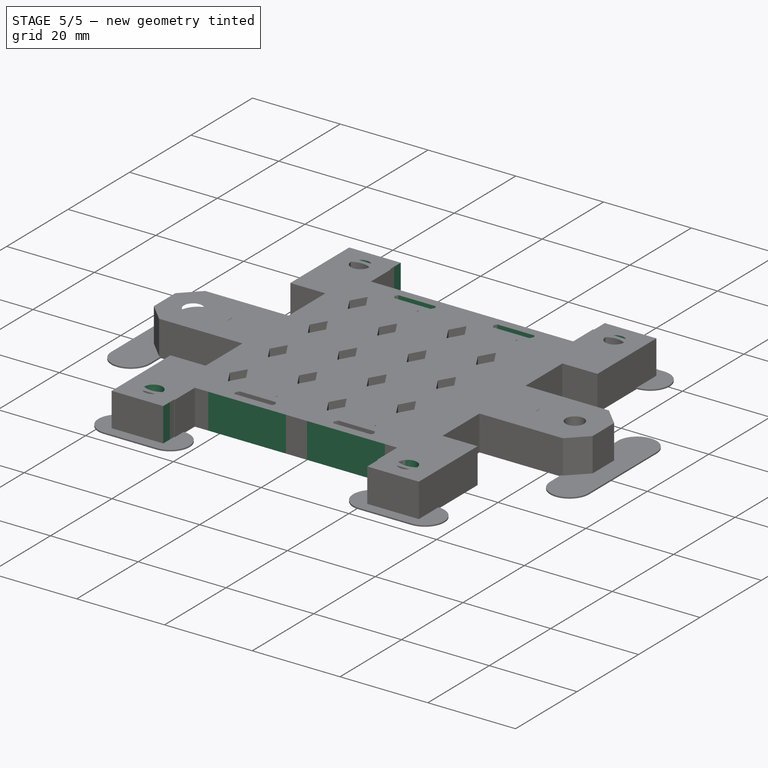
[diagram: stage 5 of 5 — iso view after this stage's code; geometry added in this stage tinted green]
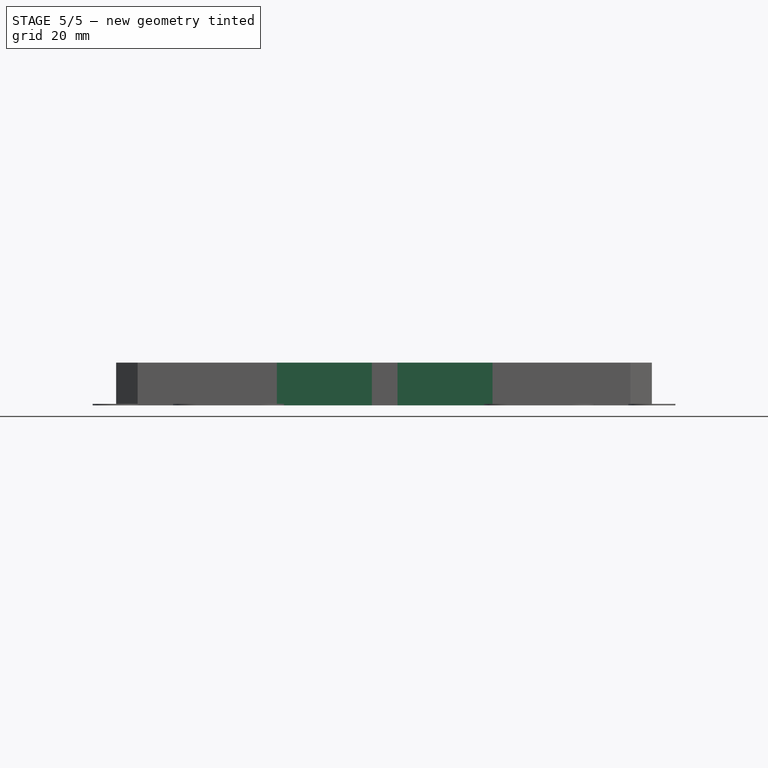
[diagram: stage 5 of 5 — front view after this stage's code; geometry added in this stage tinted green]
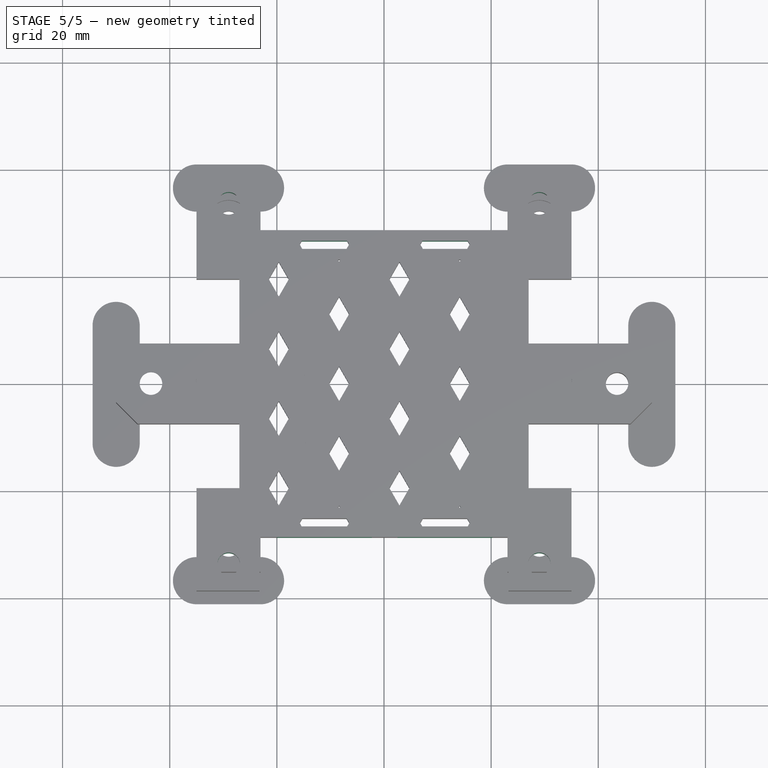
[diagram: stage 5 of 5 — top view after this stage's code; geometry added in this stage tinted green]
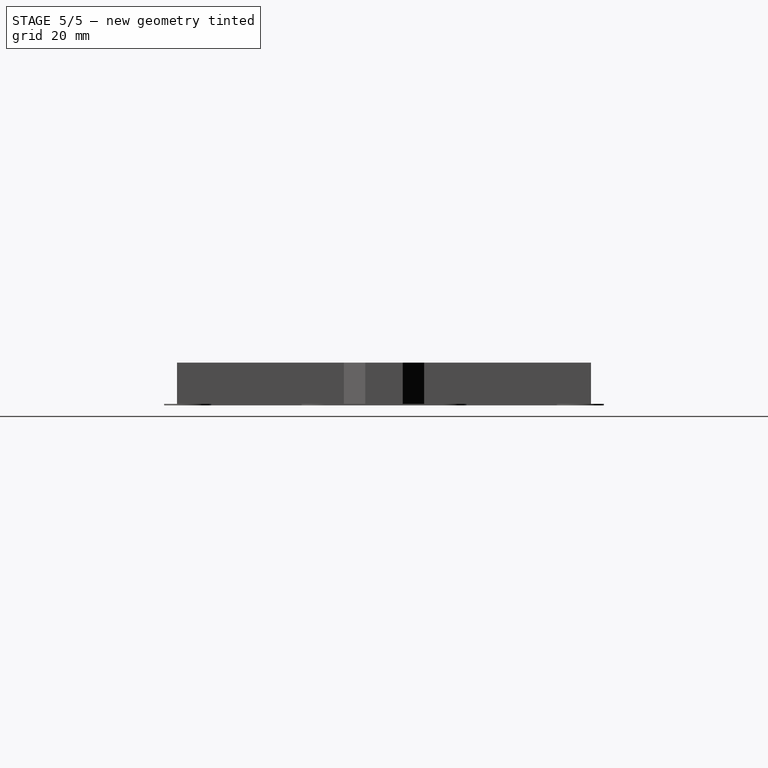
[diagram: stage 5 of 5 — right view after this stage's code; geometry added in this stage tinted green]
FEATURE [Part::MultiCommon] Common
  Shapes = -> [Extrude,Pad]
FEATURE [Sketcher::SketchObject] Sketch001
  ExternalGeometry = -> [Common]
  Placement = pos=(0,0,8) rot=(0,0,1;0rad)
  Support = -> Common [Face248]
  sketch-geometry (8):
    g0: LineSegment StartX=-35 StartY=-38.65 StartZ=0 EndX=35 EndY=-38.65 EndZ=0
    g1: LineSegment StartX=35 StartY=-38.65 StartZ=0 EndX=35 EndY=38.65 EndZ=0
    g2: LineSegment StartX=35 StartY=38.65 StartZ=0 EndX=-35 EndY=38.65 EndZ=0
    g3: LineSegment StartX=-35 StartY=38.65 StartZ=0 EndX=-35 EndY=-38.65 EndZ=0
    g4: LineSegment StartX=-27 StartY=-26.65 StartZ=0 EndX=27 EndY=-26.65 EndZ=0
    g5: LineSegment StartX=27 StartY=-26.65 StartZ=0 EndX=27 EndY=26.65 EndZ=0
    g6: LineSegment StartX=27 StartY=26.65 StartZ=0 EndX=-27 EndY=26.65 EndZ=0
    g7: LineSegment StartX=-27 StartY=26.65 StartZ=0 EndX=-27 EndY=-26.65 EndZ=0
  constraints (24):
    c: Coincident(g0,g1)
    c: Coincident(g1,g2)
    c: Coincident(g2,g3)
    c: Coincident(g3,g0)
    c: Horizontal(g0)
    c: Horizontal(g2)
    c: Vertical(g1)
    c: Vertical(g3)
    c: Coincident(g4,g5)
    c: Coincident(g5,g6)
    c: Coincident(g6,g7)
    c: Coincident(g7,g4)
    c: Horizontal(g4)
    c: Horizontal(g6)
    c: Vertical(g5)
    c: Vertical(g7)
    c: Symmetric(g5,g6,g-2)
    c: Symmetric(g4,g5,g-1)
    c: DistanceX(g5,g1) = 8
    c: DistanceY(g5,g1) = 12
    c: PointOnObject(g-5,g0)
    c: PointOnObject(g-3,g1)
    c: PointOnObject(g-6,g2)
    c: PointOnObject(g-7,g3)
FEATURE [PartDesign::Pad] Pad001
  Length = 8
  Length2 = 100
  Reversed = true
  Sketch = -> Sketch001
  Type = 0
FEATURE [Sketcher::SketchObject] Sketch002
  ExternalGeometry = -> [Pad001]
  Placement = pos=(0,0,8) rot=(0,0,1;0rad)
  Support = -> Pad001 [Face132]
  sketch-geometry (8):
    g0: LineSegment StartX=-23.25 StartY=38.65 StartZ=0 EndX=23.25 EndY=38.65 EndZ=0
    g1: LineSegment StartX=23.25 StartY=38.65 StartZ=0 EndX=23.25 EndY=28.65 EndZ=0
    g2: LineSegment StartX=23.25 StartY=28.65 StartZ=0 EndX=-23.25 EndY=28.65 EndZ=0
    g3: LineSegment StartX=-23.25 StartY=28.65 StartZ=0 EndX=-23.25 EndY=38.65 EndZ=0
    g4: LineSegment StartX=-23.25 StartY=-38.65 StartZ=0 EndX=23.25 EndY=-38.65 EndZ=0
    g5: LineSegment StartX=23.25 StartY=-38.65 StartZ=0 EndX=23.25 EndY=-28.65 EndZ=0
    g6: LineSegment StartX=23.25 StartY=-28.65 StartZ=0 EndX=-23.25 EndY=-28.65 EndZ=0
    g7: LineSegment StartX=-23.25 StartY=-28.65 StartZ=0 EndX=-23.25 EndY=-38.65 EndZ=0
  constraints (24):
    c: Coincident(g0,g1)
    c: Coincident(g1,g2)
    c: Coincident(g2,g3)
    c: Coincident(g3,g0)
    c: Horizontal(g0)
    c: Horizontal(g2)
    c: Vertical(g1)
    c: Vertical(g3)
    c: PointOnObject(g0,g-5)
    c: DistanceY(g1) = -10
    c: Symmetric(g2,g1,g-2)
    c: DistanceX(g0) = 46.5
    c: Coincident(g4,g5)
    c: Coincident(g5,g6)
    c: Coincident(g6,g7)
    c: Coincident(g7,g4)
    c: Horizontal(g4)
    c: Horizontal(g6)
    c: Vertical(g5)
    c: Vertical(g7)
    c: PointOnObject(g4,g-4)
    c: Symmetric(g5,g6,g-2)
    c: Equal(g5,g1)
    c: Equal(g6,g2)
FEATURE [PartDesign::Pocket] Pocket
  Length = 5
  Sketch = -> Sketch002
  Type = 1
FEATURE [Sketcher::SketchObject] Sketch003
  ExternalGeometry = -> [Pocket]
  Placement = pos=(0,0,8) rot=(0,0,1;0rad)
  Support = -> Pocket [Face137]
  sketch-geometry (16):
    g0: LineSegment StartX=-35 StartY=7.5 StartZ=0 EndX=-27 EndY=7.5 EndZ=0
    g1: LineSegment StartX=-27 StartY=7.5 StartZ=0 EndX=-27 EndY=19.5 EndZ=0
    g2: LineSegment StartX=-27 StartY=19.5 StartZ=0 EndX=-35 EndY=19.5 EndZ=0
    g3: LineSegment StartX=-35 StartY=19.5 StartZ=0 EndX=-35 EndY=7.5 EndZ=0
    g4: LineSegment StartX=-35 StartY=-7.5 StartZ=0 EndX=-27 EndY=-7.5 EndZ=0
    g5: LineSegment StartX=-27 StartY=-7.5 StartZ=0 EndX=-27 EndY=-19.5 EndZ=0
    g6: LineSegment StartX=-27 StartY=-19.5 StartZ=0 EndX=-35 EndY=-19.5 EndZ=0
    g7: LineSegment StartX=-35 StartY=-19.5 StartZ=0 EndX=-35 EndY=-7.5 EndZ=0
    g8: LineSegment StartX=35 StartY=7.5 StartZ=0 EndX=27 EndY=7.5 EndZ=0
    g9: LineSegment StartX=27 StartY=7.5 StartZ=0 EndX=27 EndY=19.5 EndZ=0
    g10: LineSegment StartX=27 StartY=19.5 StartZ=0 EndX=35 EndY=19.5 EndZ=0
    g11: LineSegment StartX=35 StartY=19.5 StartZ=0 EndX=35 EndY=7.5 EndZ=0
    g12: LineSegment StartX=35 StartY=-7.5 StartZ=0 EndX=27 EndY=-7.5 EndZ=0
    g13: LineSegment StartX=27 StartY=-7.5 StartZ=0 EndX=27 EndY=-19.5 EndZ=0
    g14: LineSegment StartX=27 StartY=-19.5 StartZ=0 EndX=35 EndY=-19.5 EndZ=0
    g15: LineSegment StartX=35 StartY=-19.5 StartZ=0 EndX=35 EndY=-7.5 EndZ=0
  constraints (48):
    c: Coincident(g0,g1)
    c: Coincident(g1,g2)
    c: Coincident(g2,g3)
    c: Coincident(g3,g0)
    c: Horizontal(g0)
    c: Horizontal(g2)
    c: Vertical(g1)
    c: Vertical(g3)
    c: PointOnObject(g0,g-3)
    c: Coincident(g4,g5)
    c: Coincident(g5,g6)
    c: Coincident(g6,g7)
    c: Coincident(g7,g4)
    c: Horizontal(g4)
    c: Horizontal(g6)
    c: Vertical(g5)
    c: Vertical(g7)
    c: PointOnObject(g4,g-3)
    c: Coincident(g8,g9)
    c: Coincident(g9,g10)
    c: Coincident(g10,g11)
    c: Coincident(g11,g8)
    c: Horizontal(g8)
    c: Horizontal(g10)
    c: Vertical(g9)
    c: Vertical(g11)
    c: PointOnObject(g8,g-4)
    c: Coincident(g12,g13)
    c: Coincident(g13,g14)
    c: Coincident(g14,g15)
    c: Coincident(g15,g12)
    c: Horizontal(g12)
    c: Horizontal(g14)
    c: Vertical(g13)
    c: Vertical(g15)
    c: PointOnObject(g12,g-4)
    c: Equal(g12,g8)
    c: Equal(g8,g0)
    c: Equal(g0,g4)
    c: Equal(g5,g1)
    c: Equal(g1,g9)
    c: Equal(g9,g13)
    c: Symmetric(g8,g12,g-1)
    c: PointOnObject(g0,g8)
    c: PointOnObject(g4,g12)
    c: DistanceX(g14) = 8
    c: DistanceY(g9) = 12
    c: DistanceY(g-1,g8) = 7.5
FEATURE [PartDesign::Pocket] Pocket001
  Length = 5
  Sketch = -> Sketch003
  Type = 1
FEATURE [Sketcher::SketchObject] Sketch004
  ExternalGeometry = -> [Pocket001]
  Placement = pos=(0,0,8) rot=(0,0,1;0rad)
  Support = -> Pocket001 [Face146]
  sketch-geometry (8):
    g0: LineSegment [constr] StartX=-29 StartY=33.65 StartZ=0 EndX=29 EndY=33.65 EndZ=0
    g1: LineSegment [constr] StartX=29 StartY=33.65 StartZ=0 EndX=29 EndY=-33.65 EndZ=0
    g2: LineSegment [constr] StartX=29 StartY=-33.65 StartZ=0 EndX=-29 EndY=-33.65 EndZ=0
    g3: LineSegment [constr] StartX=-29 StartY=-33.65 StartZ=0 EndX=-29 EndY=33.65 EndZ=0
    g4: Circle CenterX=-29 CenterY=33.65 CenterZ=0 NormalX=0 NormalY=0 NormalZ=1 Radius=2.1
    g5: Circle CenterX=29 CenterY=33.65 CenterZ=0 NormalX=0 NormalY=0 NormalZ=1 Radius=2.1
    g6: Circle CenterX=-29 CenterY=-33.65 CenterZ=0 NormalX=0 NormalY=0 NormalZ=1 Radius=2.1
    g7: Circle CenterX=29 CenterY=-33.65 CenterZ=0 NormalX=0 NormalY=0 NormalZ=1 Radius=2.1
  constraints (20):
    c: Coincident(g0,g1)
    c: Coincident(g1,g2)
    c: Coincident(g2,g3)
    c: Coincident(g3,g0)
    c: Horizontal(g0)
    c: Horizontal(g2)
    c: Vertical(g1)
    c: Vertical(g3)
    c: Symmetric(g1,g2,g-2)
    c: Symmetric(g0,g1,g-1)
    c: DistanceY(g-5,g0) = -5
    c: DistanceX(g0,g-5) = -6
    c: Equal(g6,g4)
    c: Equal(g4,g5)
    c: Equal(g5,g7)
    c: Radius(g5) = 2.1
    c: Coincident(g2,g6)
    c: Coincident(g0,g4)
    c: Coincident(g0,g5)
    c: Coincident(g1,g7)
FEATURE [PartDesign::Pocket] Pocket002
  Length = 5
  Sketch = -> Sketch004
  Type = 1
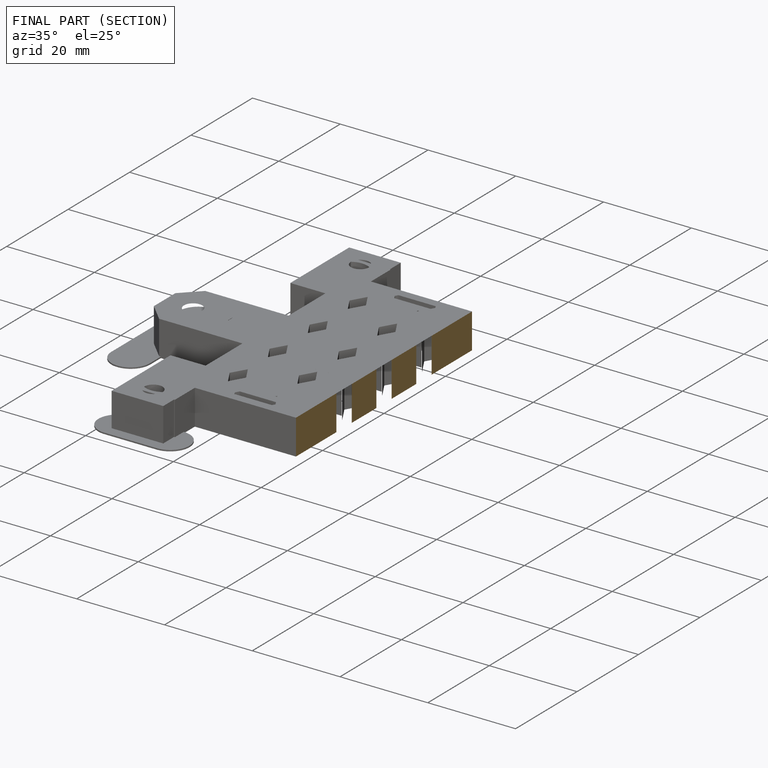
[diagram: finished part — half-section view (interior)]
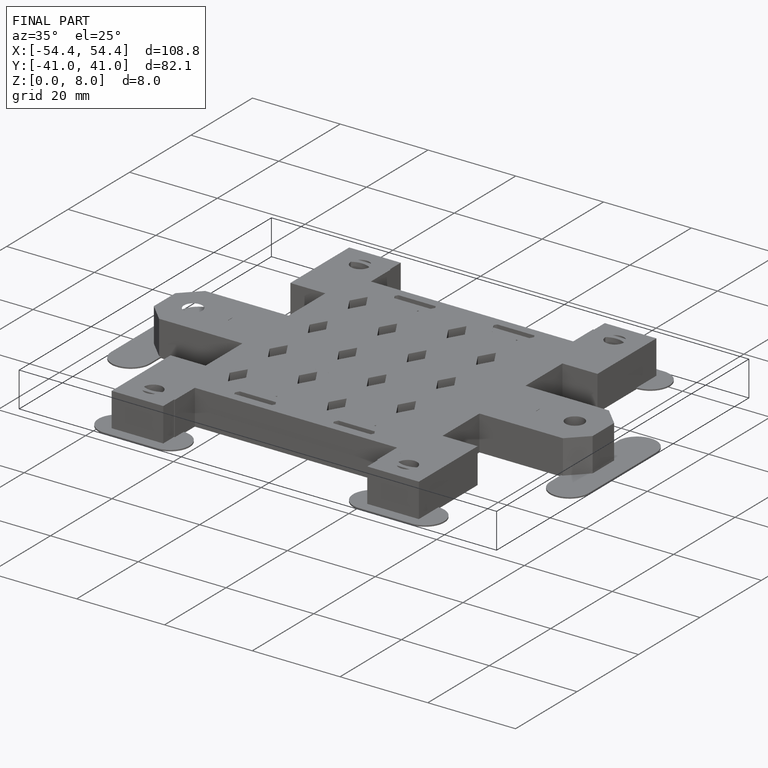
[diagram: finished part — iso view with bounding-box wireframe]
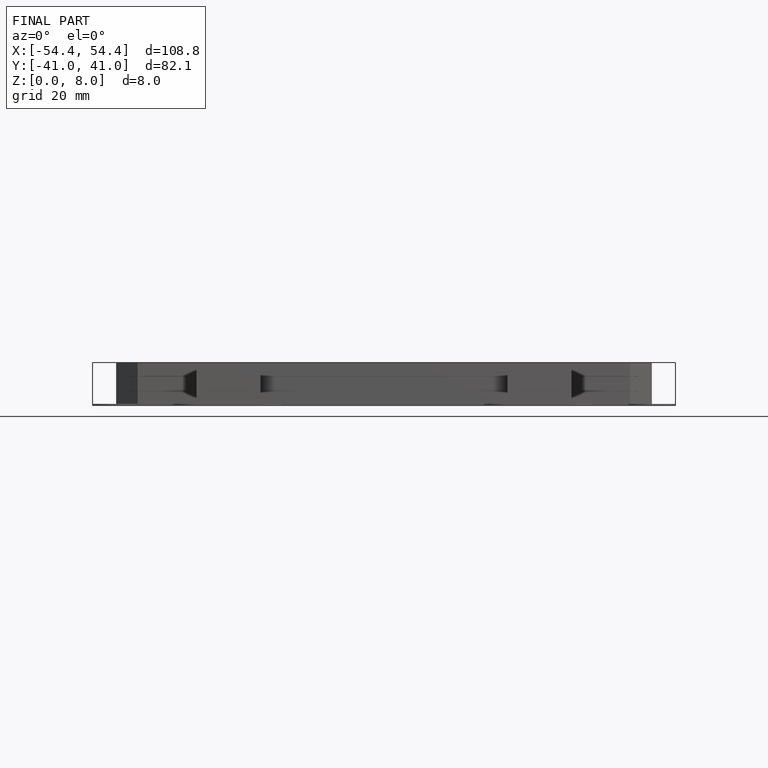
[diagram: finished part — front view with bounding-box wireframe]
